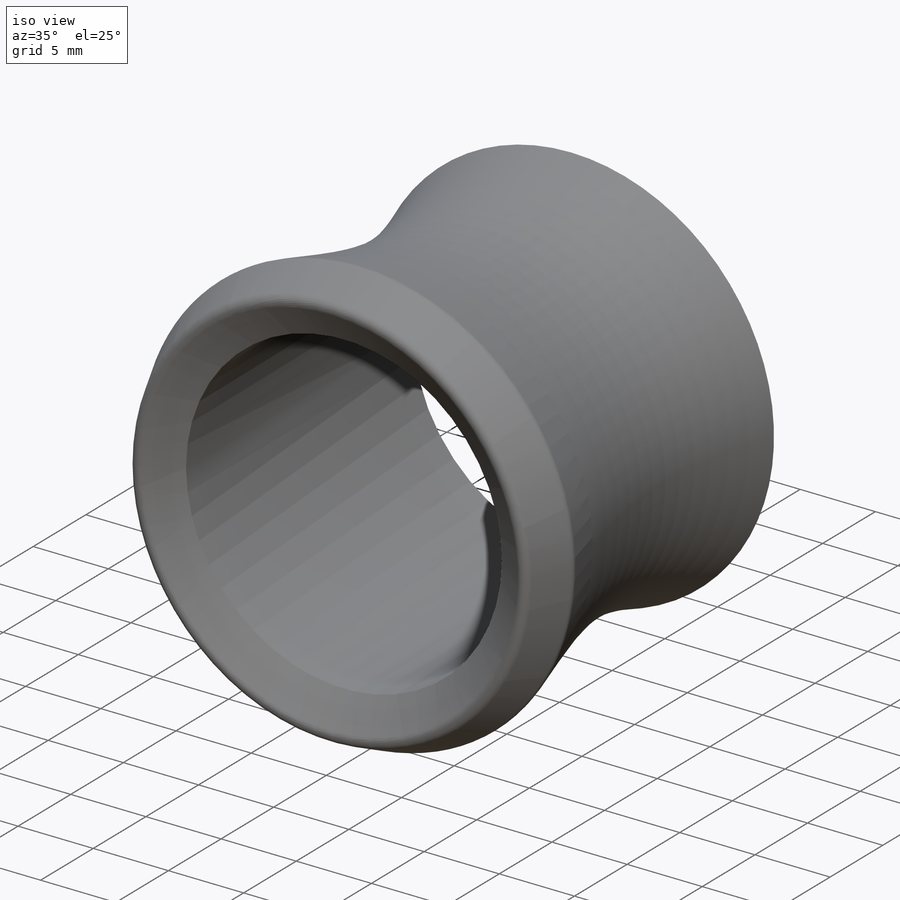
[diagram: iso view]
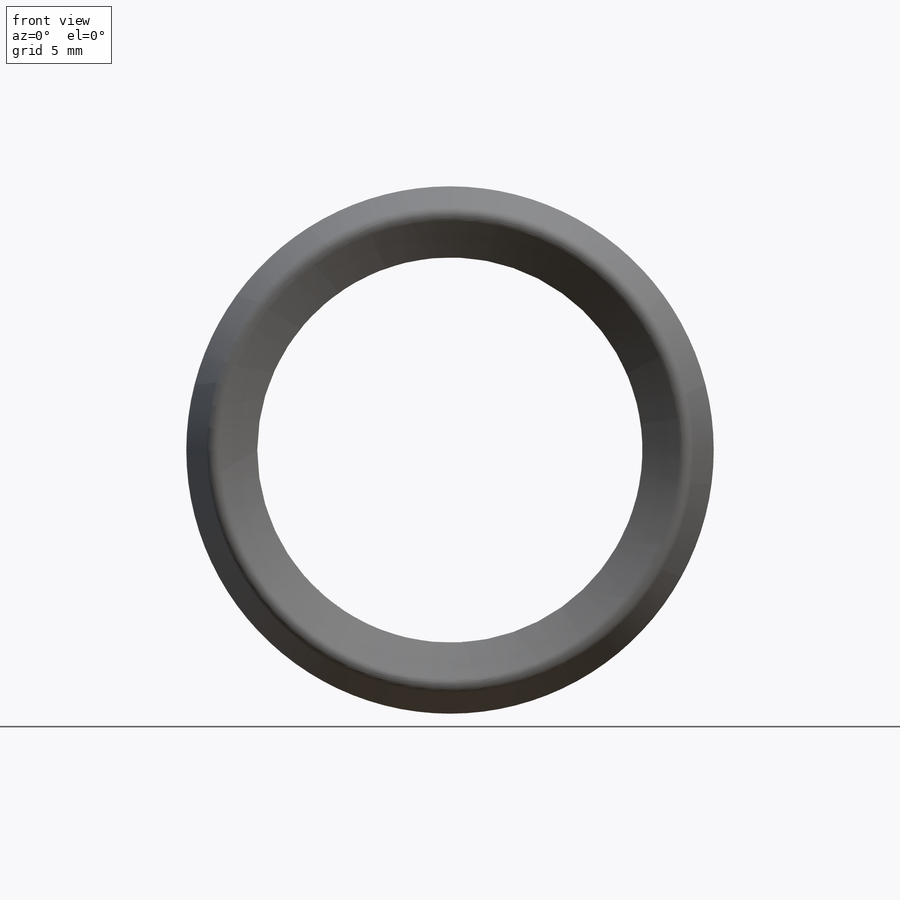
[diagram: front view]
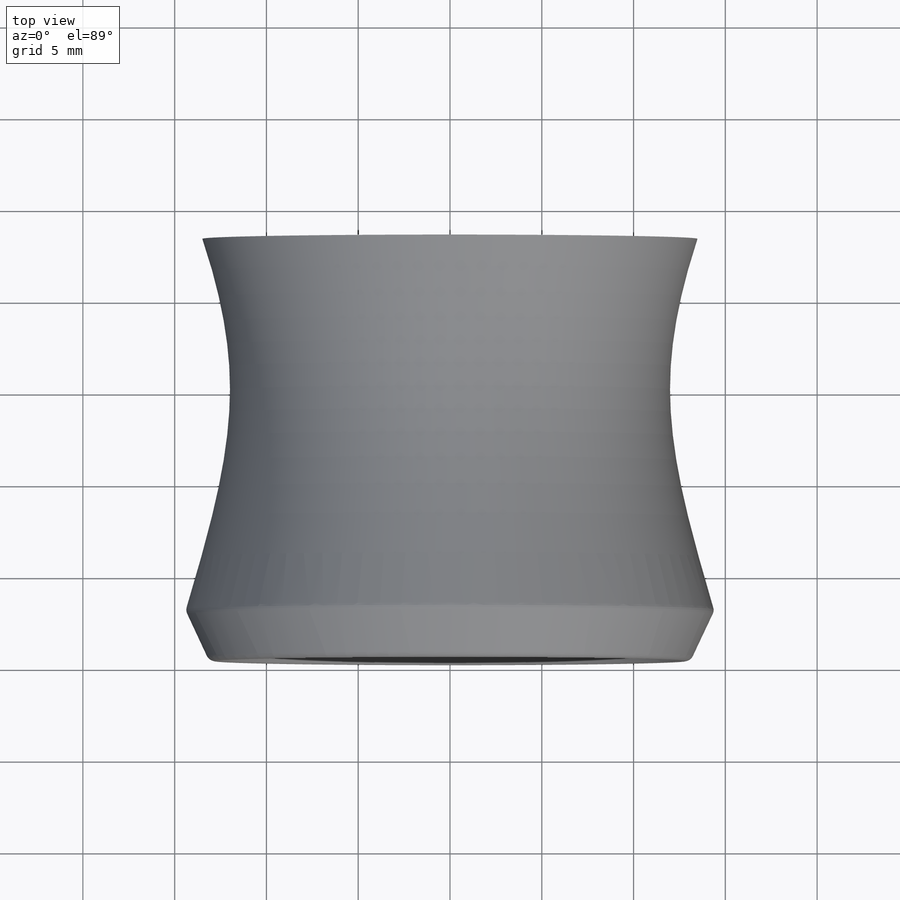
[diagram: top view]
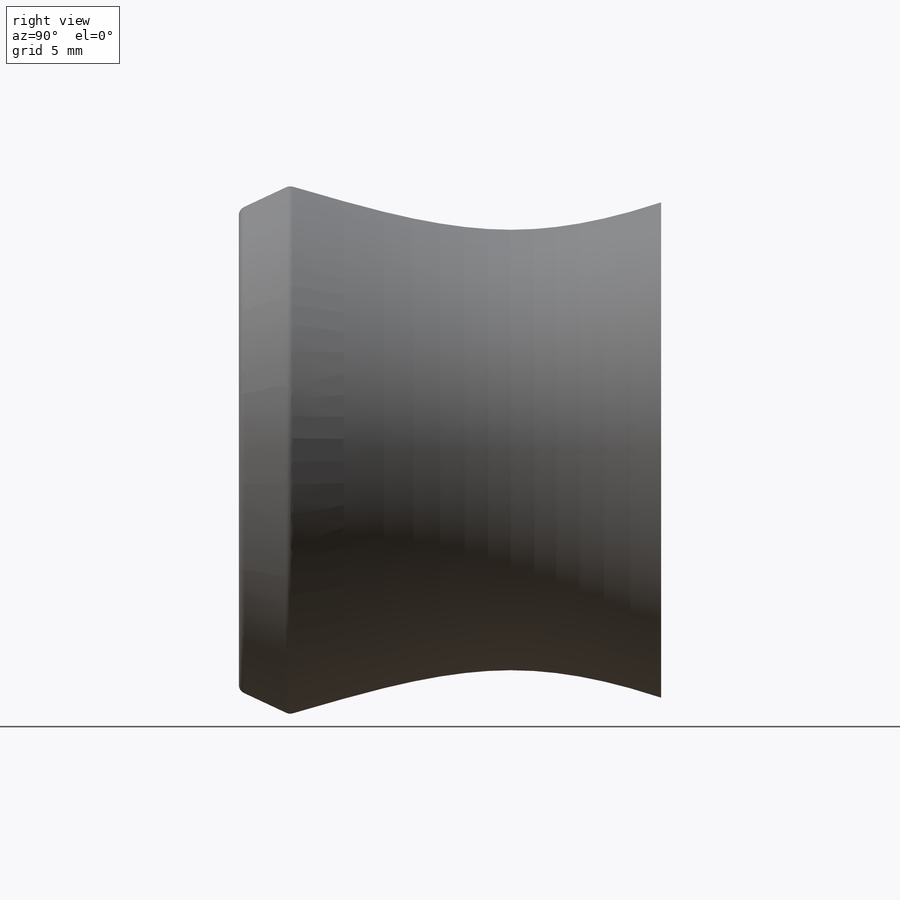
[diagram: right view]
SOLIDWORKS PART (.sldprt)
format: sldprt  version: not decoded by parser v0  size: 2,054,656 bytes
history: native  units: mm
features: sketch x21, fillet x15, cut_extrude x13, extrude x5, plane x4, cut_revolve x2, material x1, revolve x1, mirror x1 (+13 scaffold rows collapsed)
feature tree (76):
  scaffold x13  (default folders/planes/origin — collapsed)
  material  "Material <not specified>"
  sketch  "Sketch1"  dims[c1.D4=0.5mm c1.D5=20.0mm c1.D6=50.0mm c1.D7=100.0mm c2.D5=1.0mm c2.D6=7.0mm c2.D2=0.5mm c2.D4=~58.961636mm c2.D1=220.0mm c3.D2=3.0mm c3.D3=3.0mm c4.D3=25.0deg c4.D8=25.0mm c4.D9=160.0mm c4.D10=12.0mm c4.D2=3.0mm c4.D4=17.5mm c5.D2=3.0mm c5.D4=12.0mm]
  revolve  "Revolve1"  Angle=360deg
  sketch  "Sketch2"  dims[D1=14.0mm]
  cut_extrude  "Cut-Extrude1"  Depth=15mm
  sketch  "Sketch3"  dims[D1=4.0mm D2=~10.556043mm]
  cut_revolve  "Cut-Revolve1"  Angle=360deg
  fillet  "Fillet1"  Radius=0.5mm
  sketch  "Sketch7"  dims[c1.D4=4.0mm c1.D2=20.0mm c1.D1=~41.89284mm c2.D2=~15.588033mm c2.D1=40.0mm c3.D2=53.0mm c3.D3=21.0mm c3.D4=~4.132333mm c3.D5=53.0mm c3.D6=15.0mm]
  extrude  "Boss-Extrude2"  Depth=25.5mm
  sketch  "Sketch9"  dims[c1.D3=~9.654556mm c1.D2=~13.435029mm c1.D1=~12.231258mm c2.D2=~10.320124mm c2.D1=1.0mm c3.D2=22.5mm]
  sketch  "Sketch8"  dims[D1=~7.977638mm D2=5.0mm D3=9.0mm]
  cut_extrude  "Cut-Extrude5"  [1 undecoded]
  cut_extrude  "Cut-Extrude6"  Depth=3mm
  sketch  "Sketch10"  dims[D1=~11.036892mm]
  cut_extrude  "Cut-Extrude7"  Depth=2mm
  fillet  "Fillet2"  Radius=1mm
  fillet  "Fillet3"  Radius=2mm
  fillet  "Fillet4"  Radius=1mm
  plane  "Plane1"
  sketch  "Sketch11"  dims[D3=1.0mm D1=11.0mm D2=43.0mm]
  cut_extrude  "Cut-Extrude8"  Depth=6mm
  fillet  "Fillet5"  Radius=1mm
  sketch  "Sketch13"  dims[D1=30.0mm]
  cut_extrude  "Cut-Extrude9"  Depth=5mm
  sketch  "Sketch14"  dims[D1=10.0mm]
  cut_extrude  "Cut-Extrude10"  Depth=208mm
  fillet  "Fillet6"  Radius=15mm
  fillet  "Fillet7"  Radius=5mm
  fillet  "Fillet8"  Radius=5mm
  fillet  "Fillet9"  Radius=1mm
  plane  "Plane3"
  sketch  "Sketch15"  dims[c1.D9=2.0mm c1.D10=150.0mm c1.D11=5.0mm c1.D12=1.0mm c2.D10=150.0mm c2.D1=~7.312816mm c3.D1=0.1deg c3.D2=~12.422486mm c4.D2=0.1deg c4.D3=~7.955662mm c5.D3=20.0deg c5.D2=0.5mm c5.D4=0.5mm c5.D5=0.5mm c5.D6=0.5mm c5.D7=0.5mm c5.D8=0.5mm c5.D13=~47.625701mm c6.D13=60.0deg c6.D14=~3.17869mm c7.D14=75.0deg]
  cut_extrude  "Cut-Extrude11"  Depth=2mm
  sketch  "Sketch16"  dims[c1.D1=2.0mm c1.D2=2.0mm c1.D3=2.0mm c1.D4=15.0mm c1.D5=18.0mm c2.D2=16.0mm c2.D4=13.0mm c2.D5=10.0mm c2.D6=~8.868904mm c3.D6=~25.574059deg c4.D6=~8.868904mm c5.D6=~25.574059deg c6.D6=27.0mm c6.D7=1.5mm c6.D8=1.5mm c6.D9=1.5mm c6.D10=5.0mm c6.D11=15.0mm c6.D12=20.0mm c6.D13=35.0mm c6.D14=40.0mm c6.D15=2.0mm c6.D16=2.0mm c6.D17=2.0mm c6.D18=2.0mm c6.D19=6.0mm c6.D20=6.0mm c6.D21=5.0mm c6.D22=5.0mm c6.D4=5.0mm c7.D8=1.5mm c7.D3=~24.575422mm c8.D3=~25.240529deg c9.D3=25.0mm c9.D4=12.0mm c9.D5=2.0mm c9.D6=2.0mm c9.D7=~2.00144mm c9.D8=4.0mm c9.D9=2.0mm c10.D3=11.0mm c10.D23=23.0mm c10.D24=1.0mm c10.D25=~18.205702mm c11.D25=~63.438283deg c12.D25=~16.578383mm c13.D25=75.0deg]
  cut_extrude  "Cut-Extrude12"  Depth=2mm
  mirror  "Mirror2"
  sketch  "Sketch17"  dims[c1.D1=~259.116155mm c1.D2=35.0mm c1.D3=27.0mm c1.D4=161.0mm c2.D3=100.0mm c2.D5=25.0mm]
  cut_revolve  "Cut-Revolve2"  Angle=360deg
  fillet  "Fillet11"  Radius=17mm
  sketch  "Sketch20"  dims[c1.D11=8.0mm c1.D12=1.0mm c1.D13=2.0mm c1.D1=4.0mm c1.D2=3.0mm c1.D3=4.0mm c1.D4=15.0mm c1.D5=~11.101969mm c2.D5=45.0deg c2.D6=10.0mm c2.D7=7.0mm c2.D8=30.0mm c2.D9=30.0mm c3.D9=150.0deg c3.D10=25.0mm]
  cut_extrude  "Cut-Extrude14"  Depth=1mm
  plane  "Plane4"
  fillet  "Fillet12"  Radius=2mm
  sketch  "Sketch21"  dims[D1=8.0mm]
  extrude  "Boss-Extrude3"  Depth=50mm
  sketch  "Sketch22"  dims[D7=75.0mm D1=2.0mm D2=2.0mm D3=11.0mm D4=72.0mm D5=13.0mm D6=11.0mm]
  cut_extrude  "Cut-Extrude15"  Depth=1mm
  sketch  "Sketch23"  dims[c1.D1=75.0mm c1.D4=150.0mm c1.D5=2.0mm c2.D1=~1.350755mm c2.D2=~46.099151mm c3.D2=90.0deg c4.D2=~52.796679mm c5.D2=75.0deg c5.D3=5.0mm]
  extrude  "Boss-Extrude7"  Depth=0.01mm
  fillet  "Fillet13"  Radius=0.5mm
  fillet  "Fillet14"  Radius=0.5mm
  sketch  "Sketch24"  dims[D1=15.0mm D2=11.0mm]
  extrude  "Boss-Extrude8"  Depth=2mm
  fillet  "Fillet15"  Radius=1mm
  fillet  "Fillet16"  Radius=0.5mm
  sketch  "Sketch25"  dims[D1=7.0mm]
  extrude  "Boss-Extrude10"  Depth=21.75mm
  plane  "Plane5"  Offset=30mm
  sketch  "Sketch26"  dims[D1=~138.266627mm]
  cut_extrude  "Cut-Extrude16"  Depth=306mm
  sketch  "Sketch27"  dims[D1=21.0mm]
  cut_extrude  "Cut-Extrude17"  Depth=306mm
decode coverage: 56 of 58 modeling features carry decoded parameters
note: ~ marks probable driven/reference dimensions
note: 1 parameter value undecoded
note: suppression state not decoded; provenance and decode notes live in map.json
